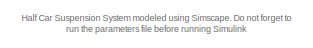
[diagram: root canvas - part 1/4, top left region]
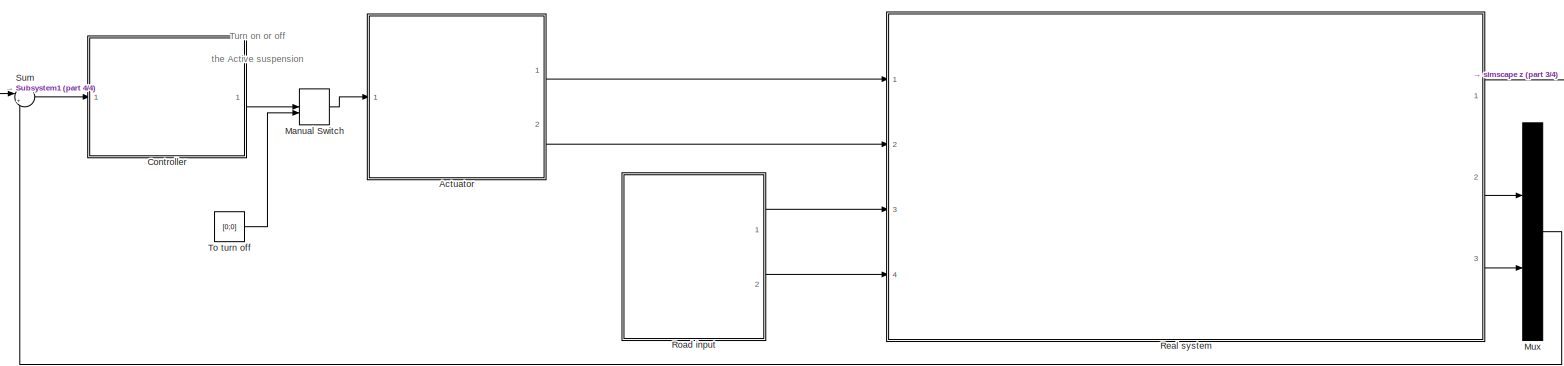
[diagram: root canvas - part 2/4, central region]
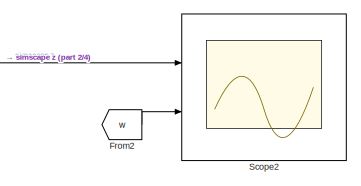
[diagram: root canvas - part 3/4, middle right region]
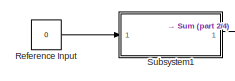
[diagram: root canvas - part 4/4, middle left region]
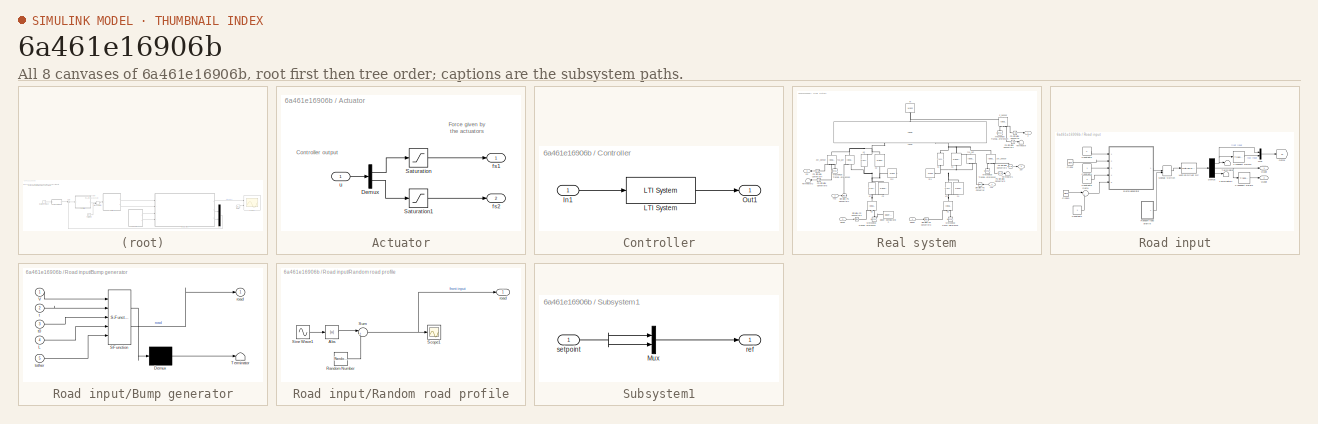
[diagram: thumbnail index - all 8 canvases of the model, root first then tree order]
MODEL slx_6a461e16906b
KIND model
CONFIG AbsTol = auto
CONFIG EnableMultiTasking = off
CONFIG FixedStep = auto
CONFIG MaxStep = auto
CONFIG MinStep = auto
CONFIG RelTol = 1e-3
CONFIG SampleTimeConstraint = Unconstrained
CONFIG SolverName = VariableStepAuto
CONFIG StartTime = 0.0
CONFIG StopTime = 10.0
BLOCK [SubSystem] Actuator
  Ports = [1, 2]
  RequestExecContextInheritance = off
BLOCK [Demux] Actuator/Demux
  Outputs = 2
  Ports = [1, 2]
BLOCK [Saturate] Actuator/Saturation
  LowerLimit = -1e4
  UpperLimit = 1e4
BLOCK [Saturate] Actuator/Saturation1
  LowerLimit = -1e4
  UpperLimit = 1e4
BLOCK [Outport] Actuator/fs1
BLOCK [Outport] Actuator/fs2
  Port = 2
BLOCK [Inport] Actuator/u
BLOCK [SubSystem] Controller
  Ports = [1, 1]
  RequestExecContextInheritance = off
BLOCK [Inport] Controller/In1
BLOCK [Reference] Controller/LTI System  REF=cstblocks/LTI System
  Ports = [1, 1]
  SourceBlock = cstblocks/LTI System
  SourceProductBaseCode = CT
  SourceType = LTI Block
BLOCK [Outport] Controller/Out1
BLOCK [From] From2
  GotoTag = w
  TagVisibility = global
BLOCK [ManualSwitch] Manual Switch
BLOCK [Mux] Mux
  DisplayOption = bar
  Inputs = 2
  Ports = [2, 1]
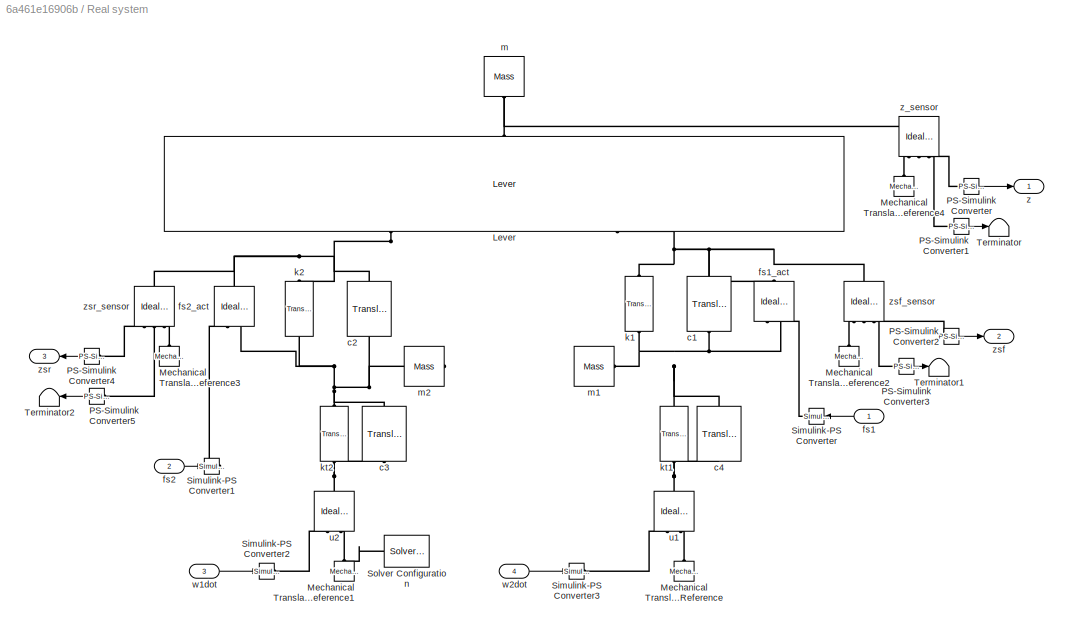
BLOCK [SubSystem] Real system
  Ports = [4, 3]
  RequestExecContextInheritance = off
BLOCK [Reference] Real system/Lever  REF=fl_lib/Mechanical/Mechanisms/Lever
  NameLocation = right
  Ports = [0, 0, 0, 0, 0, 2, 1]
  SourceBlock = fl_lib/Mechanical/Mechanisms/Lever
  SourceProductBaseCode = PW,SS,VE
  SourceType = Lever
BLOCK [Reference] Real system/Mechanical Translational Reference  REF=fl_lib/Mechanical/Translational
Elements/Mechanical
Translational
Reference
  NameLocation = right
  Ports = [0, 0, 0, 0, 0, 1]
  SourceBlock = fl_lib/Mechanical/Translational\nElements/Mechanical\nTranslational\nReference
  SourceProductBaseCode = PW,SS,VE
  SourceType = Mechanical\nTranslational\nReference
BLOCK [Reference] Real system/Mechanical Translational Reference1  REF=fl_lib/Mechanical/Translational
Elements/Mechanical
Translational
Reference
  NameLocation = right
  Ports = [0, 0, 0, 0, 0, 1]
  SourceBlock = fl_lib/Mechanical/Translational\nElements/Mechanical\nTranslational\nReference
  SourceProductBaseCode = PW,SS,VE
  SourceType = Mechanical\nTranslational\nReference
BLOCK [Reference] Real system/Mechanical Translational Reference2  REF=fl_lib/Mechanical/Translational
Elements/Mechanical
Translational
Reference
  NameLocation = right
  Ports = [0, 0, 0, 0, 0, 1]
  SourceBlock = fl_lib/Mechanical/Translational\nElements/Mechanical\nTranslational\nReference
  SourceProductBaseCode = PW,SS,VE
  SourceType = Mechanical\nTranslational\nReference
BLOCK [Reference] Real system/Mechanical Translational Reference3  REF=fl_lib/Mechanical/Translational
Elements/Mechanical
Translational
Reference
  NameLocation = right
  Ports = [0, 0, 0, 0, 0, 1]
  SourceBlock = fl_lib/Mechanical/Translational\nElements/Mechanical\nTranslational\nReference
  SourceProductBaseCode = PW,SS,VE
  SourceType = Mechanical\nTranslational\nReference
BLOCK [Reference] Real system/Mechanical Translational Reference4  REF=fl_lib/Mechanical/Translational
Elements/Mechanical
Translational
Reference
  NameLocation = right
  Ports = [0, 0, 0, 0, 0, 1]
  SourceBlock = fl_lib/Mechanical/Translational\nElements/Mechanical\nTranslational\nReference
  SourceProductBaseCode = PW,SS,VE
  SourceType = Mechanical\nTranslational\nReference
BLOCK [Reference] Real system/PS-Simulink Converter  REF=nesl_utility/PS-Simulink
Converter
  Ports = [0, 1, 0, 0, 0, 1]
  SourceBlock = nesl_utility/PS-Simulink\nConverter
  SourceProductBaseCode = SS,PW,VE
  SourceType = PS-Simulink\nConverter
BLOCK [Reference] Real system/PS-Simulink Converter1  REF=nesl_utility/PS-Simulink
Converter
  Ports = [0, 1, 0, 0, 0, 1]
  SourceBlock = nesl_utility/PS-Simulink\nConverter
  SourceProductBaseCode = SS,PW,VE
  SourceType = PS-Simulink\nConverter
BLOCK [Reference] Real system/PS-Simulink Converter2  REF=nesl_utility/PS-Simulink
Converter
  Ports = [0, 1, 0, 0, 0, 1]
  SourceBlock = nesl_utility/PS-Simulink\nConverter
  SourceProductBaseCode = SS,PW,VE
  SourceType = PS-Simulink\nConverter
BLOCK [Reference] Real system/PS-Simulink Converter3  REF=nesl_utility/PS-Simulink
Converter
  Ports = [0, 1, 0, 0, 0, 1]
  SourceBlock = nesl_utility/PS-Simulink\nConverter
  SourceProductBaseCode = SS,PW,VE
  SourceType = PS-Simulink\nConverter
BLOCK [Reference] Real system/PS-Simulink Converter4  REF=nesl_utility/PS-Simulink
Converter
  Ports = [0, 1, 0, 0, 0, 1]
  SourceBlock = nesl_utility/PS-Simulink\nConverter
  SourceProductBaseCode = SS,PW,VE
  SourceType = PS-Simulink\nConverter
BLOCK [Reference] Real system/PS-Simulink Converter5  REF=nesl_utility/PS-Simulink
Converter
  Ports = [0, 1, 0, 0, 0, 1]
  SourceBlock = nesl_utility/PS-Simulink\nConverter
  SourceProductBaseCode = SS,PW,VE
  SourceType = PS-Simulink\nConverter
BLOCK [Reference] Real system/Simulink-PS Converter  REF=nesl_utility/Simulink-PS
Converter
  Ports = [1, 0, 0, 0, 0, 0, 1]
  SourceBlock = nesl_utility/Simulink-PS\nConverter
  SourceProductBaseCode = SS,PW,VE
  SourceType = Simulink-PS\nConverter
BLOCK [Reference] Real system/Simulink-PS Converter1  REF=nesl_utility/Simulink-PS
Converter
  Ports = [1, 0, 0, 0, 0, 0, 1]
  SourceBlock = nesl_utility/Simulink-PS\nConverter
  SourceProductBaseCode = SS,PW,VE
  SourceType = Simulink-PS\nConverter
BLOCK [Reference] Real system/Simulink-PS Converter2  REF=nesl_utility/Simulink-PS
Converter
  Ports = [1, 0, 0, 0, 0, 0, 1]
  SourceBlock = nesl_utility/Simulink-PS\nConverter
  SourceProductBaseCode = SS,PW,VE
  SourceType = Simulink-PS\nConverter
BLOCK [Reference] Real system/Simulink-PS Converter3  REF=nesl_utility/Simulink-PS
Converter
  Ports = [1, 0, 0, 0, 0, 0, 1]
  SourceBlock = nesl_utility/Simulink-PS\nConverter
  SourceProductBaseCode = SS,PW,VE
  SourceType = Simulink-PS\nConverter
BLOCK [Reference] Real system/Solver Configuration  REF=nesl_utility/Solver
Configuration
  Ports = [0, 0, 0, 0, 0, 0, 1]
  SourceBlock = nesl_utility/Solver\nConfiguration
  SourceProductBaseCode = SS,PW,VE
  SourceType = Solver\nConfiguration
BLOCK [Terminator] Real system/Terminator
BLOCK [Terminator] Real system/Terminator1
BLOCK [Terminator] Real system/Terminator2
BLOCK [Reference] Real system/c1  REF=sdl_lib/Couplings & Drives/Springs & Dampers/Translational Damper
  NameLocation = left
  Ports = [0, 0, 0, 0, 0, 1, 1]
  SourceBlock = sdl_lib/Couplings & Drives/Springs & Dampers/Translational Damper
  SourceProductBaseCode = LD
  SourceType = Translational Damper
BLOCK [Reference] Real system/c2  REF=sdl_lib/Couplings & Drives/Springs & Dampers/Translational Damper
  NameLocation = left
  Ports = [0, 0, 0, 0, 0, 1, 1]
  SourceBlock = sdl_lib/Couplings & Drives/Springs & Dampers/Translational Damper
  SourceProductBaseCode = LD
  SourceType = Translational Damper
BLOCK [Reference] Real system/c3  REF=sdl_lib/Couplings & Drives/Springs & Dampers/Translational Damper
  NameLocation = left
  Ports = [0, 0, 0, 0, 0, 1, 1]
  SourceBlock = sdl_lib/Couplings & Drives/Springs & Dampers/Translational Damper
  SourceProductBaseCode = LD
  SourceType = Translational Damper
BLOCK [Reference] Real system/c4  REF=sdl_lib/Couplings & Drives/Springs & Dampers/Translational Damper
  NameLocation = left
  Ports = [0, 0, 0, 0, 0, 1, 1]
  SourceBlock = sdl_lib/Couplings & Drives/Springs & Dampers/Translational Damper
  SourceProductBaseCode = LD
  SourceType = Translational Damper
BLOCK [Inport] Real system/fs1
BLOCK [Reference] Real system/fs1_act  REF=fl_lib/Mechanical/Mechanical Sources/Ideal Force Source
  NameLocation = right
  Ports = [0, 0, 0, 0, 0, 1, 2]
  SourceBlock = fl_lib/Mechanical/Mechanical Sources/Ideal Force Source
  SourceProductBaseCode = PW,SS,VE
  SourceType = Ideal Force Source
BLOCK [Inport] Real system/fs2
  Port = 2
BLOCK [Reference] Real system/fs2_act  REF=fl_lib/Mechanical/Mechanical Sources/Ideal Force Source
  NameLocation = left
  Ports = [0, 0, 0, 0, 0, 1, 2]
  SourceBlock = fl_lib/Mechanical/Mechanical Sources/Ideal Force Source
  SourceProductBaseCode = PW,SS,VE
  SourceType = Ideal Force Source
BLOCK [Reference] Real system/k1  REF=fl_lib/Mechanical/Translational
Elements/Translational Spring
  NameLocation = left
  Ports = [0, 0, 0, 0, 0, 1, 1]
  SourceBlock = fl_lib/Mechanical/Translational\nElements/Translational Spring
  SourceProductBaseCode = PW,SS,VE
  SourceType = Translational Spring
BLOCK [Reference] Real system/k2  REF=fl_lib/Mechanical/Translational
Elements/Translational Spring
  NameLocation = left
  Ports = [0, 0, 0, 0, 0, 1, 1]
  SourceBlock = fl_lib/Mechanical/Translational\nElements/Translational Spring
  SourceProductBaseCode = PW,SS,VE
  SourceType = Translational Spring
BLOCK [Reference] Real system/kt1  REF=fl_lib/Mechanical/Translational
Elements/Translational Spring
  NameLocation = left
  Ports = [0, 0, 0, 0, 0, 1, 1]
  SourceBlock = fl_lib/Mechanical/Translational\nElements/Translational Spring
  SourceProductBaseCode = PW,SS,VE
  SourceType = Translational Spring
BLOCK [Reference] Real system/kt2  REF=fl_lib/Mechanical/Translational
Elements/Translational Spring
  NameLocation = left
  Ports = [0, 0, 0, 0, 0, 1, 1]
  SourceBlock = fl_lib/Mechanical/Translational\nElements/Translational Spring
  SourceProductBaseCode = PW,SS,VE
  SourceType = Translational Spring
BLOCK [Reference] Real system/m  REF=fl_lib/Mechanical/Translational
Elements/Mass
  NameLocation = left
  Ports = [0, 0, 0, 0, 0, 1]
  SourceBlock = fl_lib/Mechanical/Translational\nElements/Mass
  SourceProductBaseCode = PW,SS,VE
  SourceType = Mass
BLOCK [Reference] Real system/m1  REF=fl_lib/Mechanical/Translational
Elements/Mass
  Ports = [0, 0, 0, 0, 0, 1]
  SourceBlock = fl_lib/Mechanical/Translational\nElements/Mass
  SourceProductBaseCode = PW,SS,VE
  SourceType = Mass
BLOCK [Reference] Real system/m2  REF=fl_lib/Mechanical/Translational
Elements/Mass
  NameLocation = top
  Ports = [0, 0, 0, 0, 0, 1]
  SourceBlock = fl_lib/Mechanical/Translational\nElements/Mass
  SourceProductBaseCode = PW,SS,VE
  SourceType = Mass
BLOCK [Reference] Real system/u1  REF=fl_lib/Mechanical/Mechanical Sources/Ideal Translational
Velocity Source
  NameLocation = right
  Ports = [0, 0, 0, 0, 0, 1, 2]
  SourceBlock = fl_lib/Mechanical/Mechanical Sources/Ideal Translational\nVelocity Source
  SourceProductBaseCode = PW,SS,VE
  SourceType = Ideal Translational\nVelocity Source
BLOCK [Reference] Real system/u2  REF=fl_lib/Mechanical/Mechanical Sources/Ideal Translational
Velocity Source
  NameLocation = right
  Ports = [0, 0, 0, 0, 0, 1, 2]
  SourceBlock = fl_lib/Mechanical/Mechanical Sources/Ideal Translational\nVelocity Source
  SourceProductBaseCode = PW,SS,VE
  SourceType = Ideal Translational\nVelocity Source
BLOCK [Inport] Real system/w1dot
  Port = 3
BLOCK [Inport] Real system/w2dot
  Port = 4
BLOCK [Outport] Real system/z
BLOCK [Reference] Real system/z_sensor  REF=fl_lib/Mechanical/Mechanical Sensors/Ideal Translational
Motion Sensor
  NameLocation = right
  Ports = [0, 0, 0, 0, 0, 1, 3]
  SourceBlock = fl_lib/Mechanical/Mechanical Sensors/Ideal Translational\nMotion Sensor
  SourceProductBaseCode = PW,SS,VE
  SourceType = Ideal Translational\nMotion Sensor
BLOCK [Outport] Real system/zsf
  Port = 2
BLOCK [Reference] Real system/zsf_sensor  REF=fl_lib/Mechanical/Mechanical Sensors/Ideal Translational
Motion Sensor
  NameLocation = right
  Ports = [0, 0, 0, 0, 0, 1, 3]
  SourceBlock = fl_lib/Mechanical/Mechanical Sensors/Ideal Translational\nMotion Sensor
  SourceProductBaseCode = PW,SS,VE
  SourceType = Ideal Translational\nMotion Sensor
BLOCK [Outport] Real system/zsr
  Port = 3
BLOCK [Reference] Real system/zsr_sensor  REF=fl_lib/Mechanical/Mechanical Sensors/Ideal Translational
Motion Sensor
  NameLocation = left
  Ports = [0, 0, 0, 0, 0, 1, 3]
  SourceBlock = fl_lib/Mechanical/Mechanical Sensors/Ideal Translational\nMotion Sensor
  SourceProductBaseCode = PW,SS,VE
  SourceType = Ideal Translational\nMotion Sensor
BLOCK [Constant] Reference Input
  Value = 0
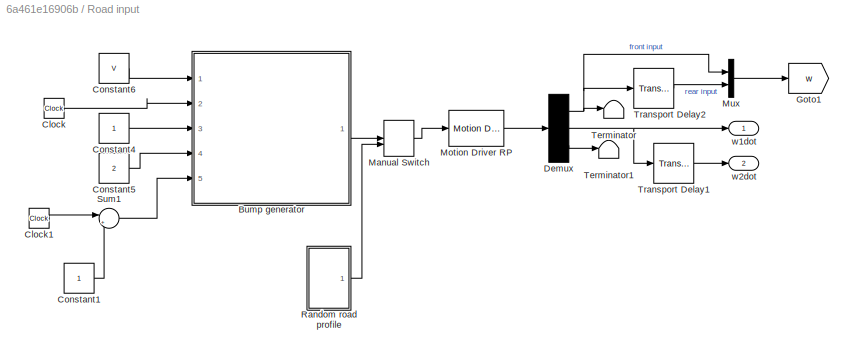
BLOCK [SubSystem] Road input
  Ports = [0, 2]
  RequestExecContextInheritance = off
BLOCK [SubSystem] Road input/Bump generator
  ErrorFcn = Stateflow.Translate.translate
  PermitHierarchicalResolution = ExplicitOnly
  Ports = [5, 1]
  RequestExecContextInheritance = off
  SFBlockType = MATLAB Function
  TreatAsAtomicUnit = on
BLOCK [Demux] Road input/Bump generator/ Demux 
  Outputs = 1
  Ports = [1, 1]
BLOCK [S-Function] Road input/Bump generator/ SFunction 
  EnableBusSupport = on
  FunctionName = sf_sfun
  PortCounts = [5 2]
  Ports = [5, 2]
  SFcnIsStateOwnerBlock = off
  SFunctionDeploymentMode = off
  Tag = Stateflow S-Function 2
BLOCK [Terminator] Road input/Bump generator/ Terminator 
BLOCK [Inport] Road input/Bump generator/L
  Port = 4
BLOCK [Inport] Road input/Bump generator/V
BLOCK [Outport] Road input/Bump generator/road
BLOCK [Inport] Road input/Bump generator/t
  Port = 2
BLOCK [Inport] Road input/Bump generator/t0
  Port = 3
BLOCK [Inport] Road input/Bump generator/tother
  Port = 5
BLOCK [Clock] Road input/Clock
BLOCK [Clock] Road input/Clock1
BLOCK [Constant] Road input/Constant1
BLOCK [Constant] Road input/Constant4
BLOCK [Constant] Road input/Constant5
  Value = 2
BLOCK [Constant] Road input/Constant6
  Value = V
BLOCK [Demux] Road input/Demux
  Outputs = 3
  Ports = [1, 3]
BLOCK [Goto] Road input/Goto1
  GotoTag = w
  TagVisibility = global
BLOCK [ManualSwitch] Road input/Manual Switch
  CurrentSetting = 0
BLOCK [Reference] Road input/Motion Driver RP  REF=motdrv_lib/Motion Driver With  (lib defined in mdl_f893a8a60233)
Displacement Input
  Ports = [1, 1]
  SourceBlock = motdrv_lib/Motion Driver With\nDisplacement Input
  SourceType = Motion Driver with Acceleration Input
BLOCK [Mux] Road input/Mux
  DisplayOption = bar
  Inputs = 2
  Ports = [2, 1]
BLOCK [SubSystem] Road input/Random road profile
  Ports = [0, 1]
  RequestExecContextInheritance = off
BLOCK [Abs] Road input/Random road profile/Abs
  SaturateOnIntegerOverflow = off
BLOCK [RandomNumber] Road input/Random road profile/Random Number
  SampleTime = 0.01
  Variance = .0001
BLOCK [Scope] Road input/Random road profile/Scope1
  Floating = off
  NumInputPorts = 1
  Ports = [1]
  ScopeSpecificationString = Simulink.scopes.TimeScopeBlockCfg('CurrentConfiguration', extmgr.ConfigurationSet(extmgr.Configuration('Core','General UI',true),extmgr.Configuration('Core','Source UI',true),extmgr.Configuration('Sources','WiredSimulink',true,'DataLoggingVariableName','ScopeData1'),extmgr.Configuration('Visuals','Time Domain',true,'SerializedDisplays',{struct('MinYLimReal','-0.03582','MaxYLimReal','0.4','YLabelRe...<+1475ch>
BLOCK [Sin] Road input/Random road profile/Sine Wave1
  Amplitude = .05
  Frequency = 5
  Ports = [0, 1]
  SampleTime = 0
BLOCK [Sum] Road input/Random road profile/Sum
  Inputs = |++
  Ports = [2, 1]
BLOCK [Outport] Road input/Random road profile/road
BLOCK [Sum] Road input/Sum1
  Inputs = |+-
  Ports = [2, 1]
BLOCK [Terminator] Road input/Terminator
BLOCK [Terminator] Road input/Terminator1
BLOCK [TransportDelay] Road input/Transport Delay1
  DelayTime = 0.1625
  Ports = [1, 1]
BLOCK [TransportDelay] Road input/Transport Delay2
  DelayTime = 0.1625
  Ports = [1, 1]
BLOCK [Outport] Road input/w1dot
BLOCK [Outport] Road input/w2dot
  Port = 2
BLOCK [Scope] Scope2
  Floating = off
  NumInputPorts = 2
  Ports = [2]
  ScopeSpecificationString = Simulink.scopes.TimeScopeBlockCfg('CurrentConfiguration', extmgr.ConfigurationSet(extmgr.Configuration('Core','General UI',true),extmgr.Configuration('Core','Source UI',true),extmgr.Configuration('Sources','WiredSimulink',true,'DataLoggingVariableName','ScopeData1'),extmgr.Configuration('Visuals','Time Domain',true,'SerializedDisplays',{struct('MinYLimReal','-0.00929','MaxYLimReal','0.07379','YLab...<+2470ch>
BLOCK [SubSystem] Subsystem1
  Ports = [1, 1]
  RequestExecContextInheritance = off
BLOCK [Mux] Subsystem1/Mux
  DisplayOption = bar
  Inputs = 2
  Ports = [2, 1]
BLOCK [Outport] Subsystem1/ref
BLOCK [Inport] Subsystem1/setpoint
BLOCK [Sum] Sum
  Inputs = |+-
  Ports = [2, 1]
BLOCK [Constant] To turn off
  Value = [0;0]
ANNOTATION (root): Turn on or off the Active suspension
ANNOTATION (root): Half Car Suspension System modeled using Simscape. Do not forget to run the parameters file before running Simulink
ANNOTATION Actuator: Controller output
ANNOTATION Actuator: Force given by the actuators
LINE Actuator/Demux:1 -> Actuator/Saturation:1
LINE Actuator/Demux:2 -> Actuator/Saturation1:1
LINE Actuator/Saturation1:1 -> Actuator/fs2:1
LINE Actuator/Saturation:1 -> Actuator/fs1:1
LINE Actuator/u:1 -> Actuator/Demux:1
LINE Actuator:1 -> Real system:1
LINE Actuator:2 -> Real system:2
LINE Controller/In1:1 -> Controller/LTI System:1
LINE Controller/LTI System:1 -> Controller/Out1:1
LINE Controller:1 -> Manual Switch:1
LINE From2:1 -> Scope2:2
LINE Manual Switch:1 -> Actuator:1
LINE Mux:1 -> Sum:2
LINE Real system/PS-Simulink Converter1:1 -> Real system/Terminator:1
LINE Real system/PS-Simulink Converter2:1 -> Real system/zsf:1
LINE Real system/PS-Simulink Converter3:1 -> Real system/Terminator1:1
LINE Real system/PS-Simulink Converter4:1 -> Real system/zsr:1
LINE Real system/PS-Simulink Converter5:1 -> Real system/Terminator2:1
LINE Real system/PS-Simulink Converter:1 -> Real system/z:1
LINE Real system/fs1:1 -> Real system/Simulink-PS Converter:1
LINE Real system/fs2:1 -> Real system/Simulink-PS Converter1:1
LINE Real system/w1dot:1 -> Real system/Simulink-PS Converter2:1
LINE Real system/w2dot:1 -> Real system/Simulink-PS Converter3:1
LINE Real system:1 -> Scope2:1
LINE Real system:2 -> Mux:1
LINE Real system:3 -> Mux:2
LINE Reference Input:1 -> Subsystem1:1
LINE Road input/Bump generator:1 -> Road input/Manual Switch:1
LINE Road input/Clock1:1 -> Road input/Sum1:1
LINE Road input/Clock:1 -> Road input/Bump generator:2
LINE Road input/Constant1:1 -> Road input/Sum1:2
LINE Road input/Constant4:1 -> Road input/Bump generator:3
LINE Road input/Constant5:1 -> Road input/Bump generator:4
LINE Road input/Constant6:1 -> Road input/Bump generator:1
NET Road input/Demux:1 -> Road input/Mux:1, Road input/Terminator:1, Road input/Transport Delay2:1
NET Road input/Demux:2 -> Road input/Transport Delay1:1, Road input/w1dot:1
LINE Road input/Demux:3 -> Road input/Terminator1:1
LINE Road input/Manual Switch:1 -> Road input/Motion Driver RP:1
LINE Road input/Motion Driver RP:1 -> Road input/Demux:1
LINE Road input/Mux:1 -> Road input/Goto1:1
LINE Road input/Random road profile/Abs:1 -> Road input/Random road profile/Sum:1
LINE Road input/Random road profile/Random Number:1 -> Road input/Random road profile/Sum:2
LINE Road input/Random road profile/Sine Wave1:1 -> Road input/Random road profile/Abs:1
NET Road input/Random road profile/Sum:1 -> Road input/Random road profile/Scope1:1, Road input/Random road profile/road:1
LINE Road input/Random road profile:1 -> Road input/Manual Switch:2
LINE Road input/Sum1:1 -> Road input/Bump generator:5
LINE Road input/Transport Delay1:1 -> Road input/w2dot:1
LINE Road input/Transport Delay2:1 -> Road input/Mux:2
LINE Road input:1 -> Real system:3
LINE Road input:2 -> Real system:4
LINE Subsystem1/Mux:1 -> Subsystem1/ref:1
NET Subsystem1/setpoint:1 -> Subsystem1/Mux:1, Subsystem1/Mux:2
LINE Subsystem1:1 -> Sum:1
LINE Sum:1 -> Controller:1
LINE To turn off:1 -> Manual Switch:2
PNET net1: Real system/Lever:LConn1 -- Real system/c2:LConn1 -- Real system/fs2_act:LConn1 -- Real system/k2:LConn1 -- Real system/zsr_sensor:LConn1
PNET net2: Real system/Lever:LConn2 -- Real system/c1:LConn1 -- Real system/fs1_act:LConn1 -- Real system/k1:LConn1 -- Real system/zsf_sensor:LConn1
PNET net3: Real system/Lever:RConn1 -- Real system/m:LConn1 -- Real system/z_sensor:LConn1
PNET net4: Real system/Mechanical Translational Reference1:LConn1 -- Real system/Solver Configuration:RConn1 -- Real system/u2:RConn2
PLINE Real system/Mechanical Translational Reference2:LConn1 -- Real system/zsf_sensor:RConn1
PLINE Real system/Mechanical Translational Reference3:LConn1 -- Real system/zsr_sensor:RConn1
PLINE Real system/Mechanical Translational Reference4:LConn1 -- Real system/z_sensor:RConn1
PLINE Real system/Mechanical Translational Reference:LConn1 -- Real system/u1:RConn2
PLINE Real system/PS-Simulink Converter1:LConn1 -- Real system/z_sensor:RConn2
PLINE Real system/PS-Simulink Converter2:LConn1 -- Real system/zsf_sensor:RConn3
PLINE Real system/PS-Simulink Converter3:LConn1 -- Real system/zsf_sensor:RConn2
PLINE Real system/PS-Simulink Converter4:LConn1 -- Real system/zsr_sensor:RConn3
PLINE Real system/PS-Simulink Converter5:LConn1 -- Real system/zsr_sensor:RConn2
PLINE Real system/PS-Simulink Converter:LConn1 -- Real system/z_sensor:RConn3
PLINE Real system/Simulink-PS Converter1:RConn1 -- Real system/fs2_act:RConn1
PLINE Real system/Simulink-PS Converter2:RConn1 -- Real system/u2:RConn1
PLINE Real system/Simulink-PS Converter3:RConn1 -- Real system/u1:RConn1
PLINE Real system/Simulink-PS Converter:RConn1 -- Real system/fs1_act:RConn1
PNET net5: Real system/c1:RConn1 -- Real system/c4:LConn1 -- Real system/fs1_act:RConn2 -- Real system/k1:RConn1 -- Real system/kt1:LConn1 -- Real system/m1:LConn1
PNET net6: Real system/c2:RConn1 -- Real system/c3:LConn1 -- Real system/fs2_act:RConn2 -- Real system/k2:RConn1 -- Real system/kt2:LConn1 -- Real system/m2:LConn1
PNET net7: Real system/c3:RConn1 -- Real system/kt2:RConn1 -- Real system/u2:LConn1
PNET net8: Real system/c4:RConn1 -- Real system/kt1:RConn1 -- Real system/u1:LConn1
note: NET lines group one-source signal fan-out (src -> all destinations, sorted); 1:1 wires keep LINE; PNET lines group multi-terminal physical nets as a canonical sorted terminal list (undirected conserving connections); 2-terminal nets keep the pairwise PLINE form
CHART Road input/Bump generator states=1 transitions=1
  STATE_LABEL 'eML_blk_kernel()'
  STATE_LABEL 'SCRIPT:\nfunction road = fcn(V, t, t0, L, tother)\n\n\nif t>t0 && t<=t0+L/V\n        road = -1/2*0.30*(cos(2*pi*V*tother/L)-1);\nelse \n    road = 0;\nend\n\nend'
CHART  states=0 transitions=0
